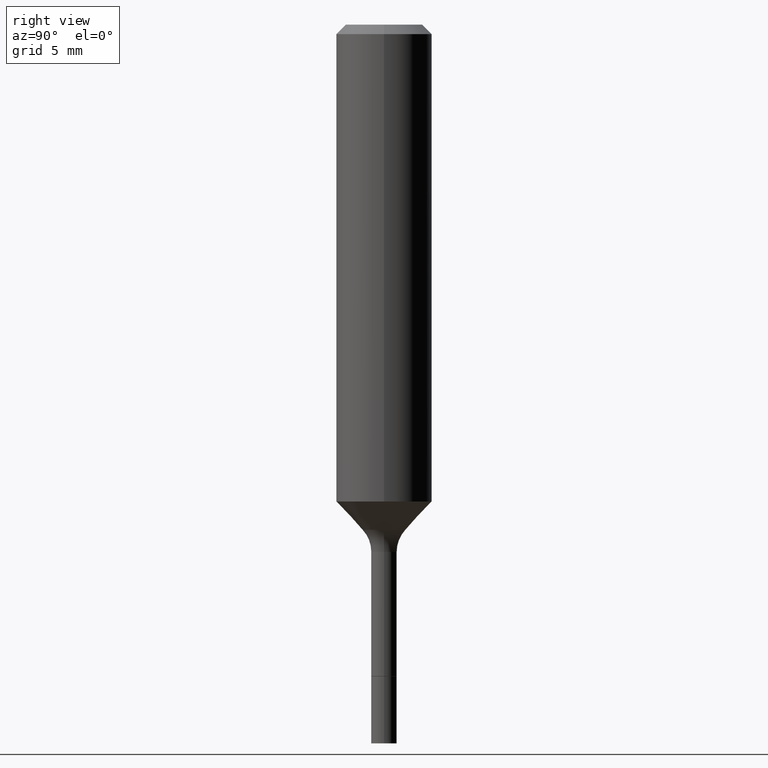
[diagram: clean part render]
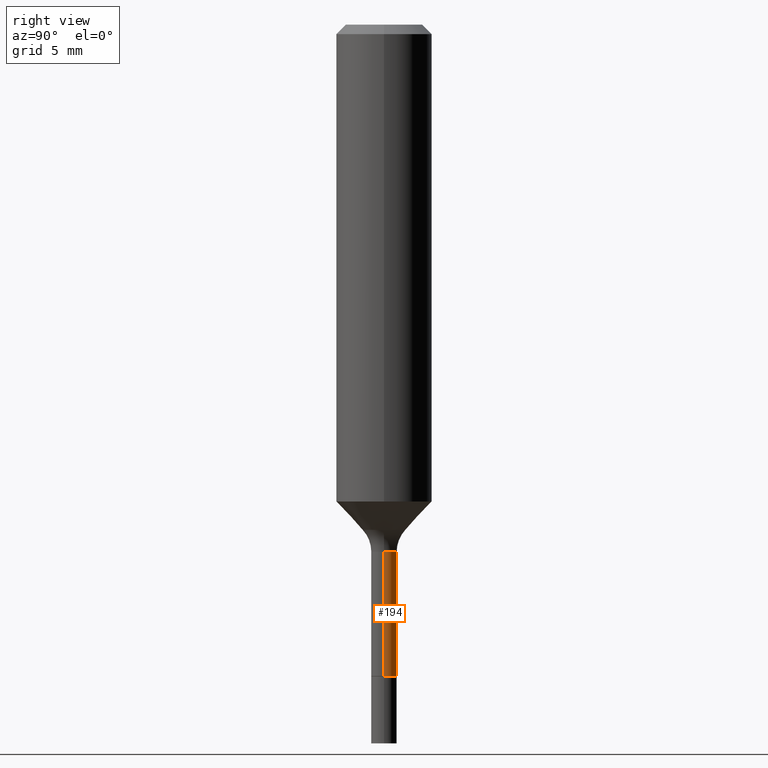
[diagram: same view with one face highlighted and labeled with its STEP entity id]
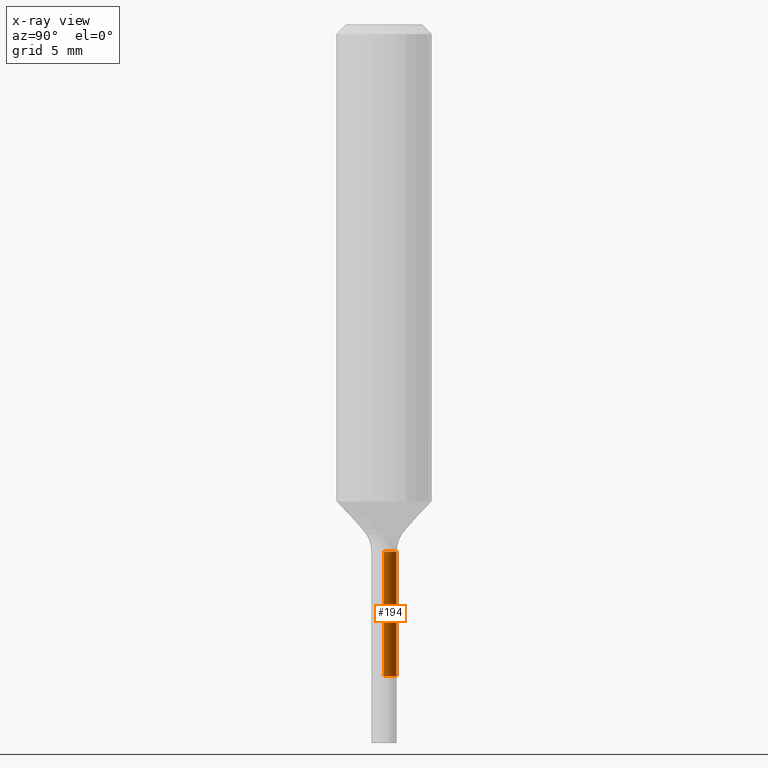
[diagram: x-ray of the same camera — body ghosted, the highlighted face saturated]
A machine part, right view. The second image highlights one B-rep face of the part: STEP entity #194.
The next image is the same camera in x-ray: the body ghosted, the highlighted face saturated — about 0% of this face is hidden behind the body in this view.
In plain terms, the highlighted cylindrical surface (edge-blend (fillet) strip) has radius 0.8001 mm, axis along (-0, 0, 1).
Its self-contained STEP definition (entity closure, byte-faithful):
#18 = CARTESIAN_POINT ( 'NONE',  ( 3.178375807398822119E-29, -4.537878296094436237E-15, -1.299700000000000077 ) ) ;
#25 = EDGE_CURVE ( 'NONE', #33, #516, #186, .T. ) ;
#28 = EDGE_CURVE ( 'NONE', #516, #288, #316, .T. ) ;
#33 = VERTEX_POINT ( 'NONE', #408 ) ;
#45 = CARTESIAN_POINT ( 'NONE',  ( -0.03149999999999999328, -4.849126849507717412E-15, -1.606200000000000294 ) ) ;
#54 = EDGE_CURVE ( 'NONE', #33, #183, #226, .T. ) ;
#75 = EDGE_LOOP ( 'NONE', ( #144, #390, #202, #253 ) ) ;
#94 = CARTESIAN_POINT ( 'NONE',  ( -0.03149999999999998634, 2.238209617644314615E-16, -1.549464553430294451E-30 ) ) ;
#108 = CARTESIAN_POINT ( 'NONE',  ( -0.03149999999999995859, -4.849126849507717412E-15, -1.299700000000000077 ) ) ;
#121 = DIRECTION ( 'NONE',  ( -2.445468806185136877E-29, 3.491481338843145188E-15, 1.000000000000000000 ) ) ;
#128 = CARTESIAN_POINT ( 'NONE',  ( 0.000000000000000000, 0.000000000000000000, 0.000000000000000000 ) ) ;
#143 = DIRECTION ( 'NONE',  ( -2.445468806185136597E-29, 3.491481338843145583E-15, 1.000000000000000000 ) ) ;
#144 = ORIENTED_EDGE ( 'NONE', *, *, #54, .T. ) ;
#152 = AXIS2_PLACEMENT_3D ( 'NONE', #128, #286, #444 ) ;
#171 = LINE ( 'NONE', #94, #242 ) ;
#181 = CARTESIAN_POINT ( 'NONE',  ( 0.03149999999999995859, -4.757841620441553575E-15, -1.299700000000000077 ) ) ;
#183 = VERTEX_POINT ( 'NONE', #45 ) ;
#186 = LINE ( 'NONE', #343, #220 ) ;
#194 = ADVANCED_FACE ( 'NONE', ( #243 ), #237, .T. ) ;
#202 = ORIENTED_EDGE ( 'NONE', *, *, #28, .F. ) ;
#220 = VECTOR ( 'NONE', #263, 39.37007874015748143 ) ;
#221 = AXIS2_PLACEMENT_3D ( 'NONE', #18, #143, #260 ) ;
#226 = CIRCLE ( 'NONE', #347, 0.03150000000000000022 ) ;
#237 = CYLINDRICAL_SURFACE ( 'NONE', #152, 0.03149999999999998634 ) ;
#242 = VECTOR ( 'NONE', #121, 39.37007874015748143 ) ;
#243 = FACE_OUTER_BOUND ( 'NONE', #75, .T. ) ;
#253 = ORIENTED_EDGE ( 'NONE', *, *, #25, .F. ) ;
#259 = DIRECTION ( 'NONE',  ( 1.000000000000000000, -6.982962677686255667E-15, 0.000000000000000000 ) ) ;
#260 = DIRECTION ( 'NONE',  ( 1.000000000000000000, -6.982962677686265133E-15, 0.000000000000000000 ) ) ;
#263 = DIRECTION ( 'NONE',  ( -2.445468806185136877E-29, 3.491481338843145188E-15, 1.000000000000000000 ) ) ;
#286 = DIRECTION ( 'NONE',  ( -2.445468806185136597E-29, 3.491481338843145583E-15, 1.000000000000000000 ) ) ;
#288 = VERTEX_POINT ( 'NONE', #108 ) ;
#316 = CIRCLE ( 'NONE', #221, 0.03149999999999995859 ) ;
#343 = CARTESIAN_POINT ( 'NONE',  ( 0.03149999999999998634, -2.199633243471172643E-16, 1.535995684375719011E-30 ) ) ;
#346 = CARTESIAN_POINT ( 'NONE',  ( 3.927911996494567051E-29, -5.608017326449861312E-15, -1.606200000000000294 ) ) ;
#347 = AXIS2_PLACEMENT_3D ( 'NONE', #346, #380, #259 ) ;
#380 = DIRECTION ( 'NONE',  ( -2.445468806185136597E-29, 3.491481338843145583E-15, 1.000000000000000000 ) ) ;
#388 = EDGE_CURVE ( 'NONE', #183, #288, #171, .T. ) ;
#390 = ORIENTED_EDGE ( 'NONE', *, *, #388, .T. ) ;
#408 = CARTESIAN_POINT ( 'NONE',  ( 0.03150000000000000022, -5.827980650796978650E-15, -1.606200000000000294 ) ) ;
#444 = DIRECTION ( 'NONE',  ( 1.000000000000000000, -6.982962677686265133E-15, 4.876176775795935232E-29 ) ) ;
#516 = VERTEX_POINT ( 'NONE', #181 ) ;